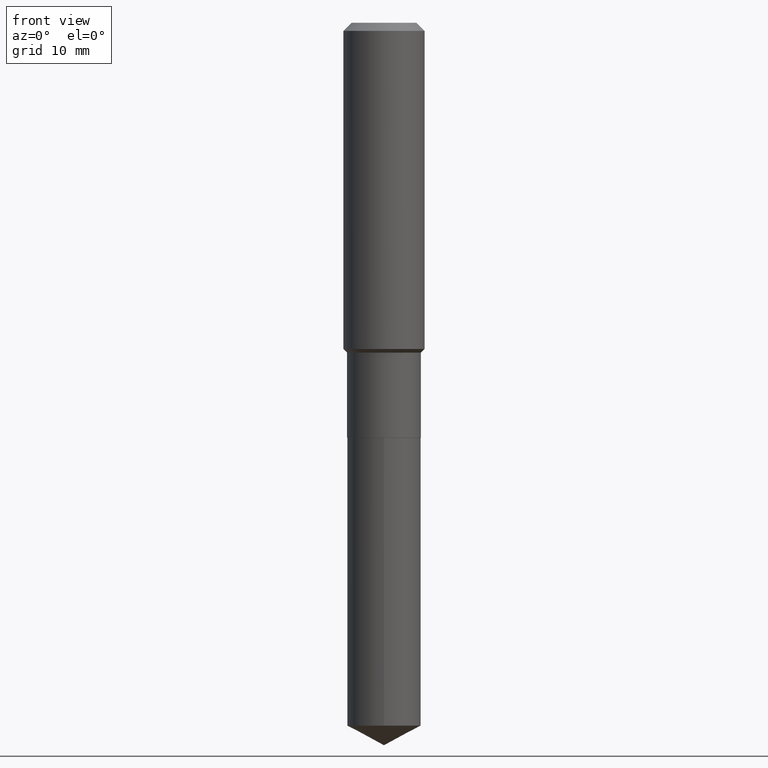
[diagram: clean part render]
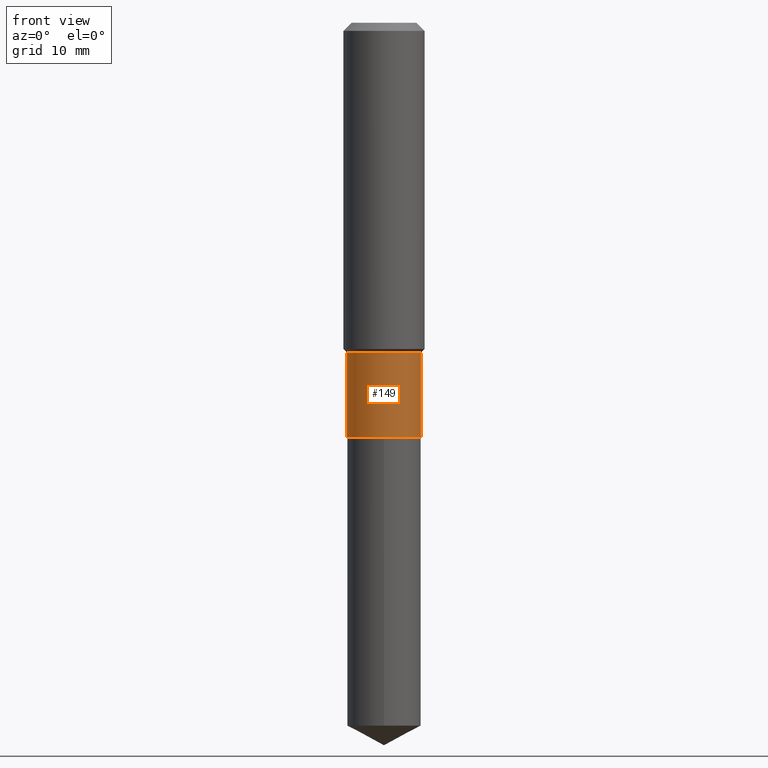
[diagram: same view with one face highlighted and labeled with its STEP entity id]
A machine part, front view. The second image highlights one B-rep face of the part: STEP entity #149.
In plain terms, the highlighted cylindrical surface (partial cylindrical patch) has radius 4.5504 mm, axis along (-0, 0, 1).
Its self-contained STEP definition (entity closure, byte-faithful):
#2 = CYLINDRICAL_SURFACE ( 'NONE', #41, 0.1791500000000000314 ) ;
#32 = VECTOR ( 'NONE', #246, 39.37007874015748143 ) ;
#40 = EDGE_CURVE ( 'NONE', #132, #418, #356, .T. ) ;
#41 = AXIS2_PLACEMENT_3D ( 'NONE', #313, #456, #131 ) ;
#66 = EDGE_LOOP ( 'NONE', ( #447, #342, #263, #201 ) ) ;
#68 = CARTESIAN_POINT ( 'NONE',  ( 0.1791500000000000314, -1.250997763707495014E-15, 8.735670693838419573E-30 ) ) ;
#71 = VECTOR ( 'NONE', #380, 39.37007874015748143 ) ;
#74 = FACE_OUTER_BOUND ( 'NONE', #66, .T. ) ;
#131 = DIRECTION ( 'NONE',  ( 1.000000000000000000, -6.982962677686267499E-15, 4.876176775795935232E-29 ) ) ;
#132 = VERTEX_POINT ( 'NONE', #419 ) ;
#136 = CARTESIAN_POINT ( 'NONE',  ( 0.1791499999999999759, -6.836669609588758911E-15, -1.599799999999999889 ) ) ;
#138 = CARTESIAN_POINT ( 'NONE',  ( -0.1791499999999999759, -5.031106820234021505E-15, -1.599799999999999889 ) ) ;
#149 = ADVANCED_FACE ( 'NONE', ( #74 ), #2, .T. ) ;
#152 = LINE ( 'NONE', #68, #71 ) ;
#201 = ORIENTED_EDGE ( 'NONE', *, *, #395, .F. ) ;
#242 = EDGE_CURVE ( 'NONE', #132, #282, #244, .T. ) ;
#244 = LINE ( 'NONE', #426, #32 ) ;
#246 = DIRECTION ( 'NONE',  ( -2.445468806185136877E-29, 3.491481338843145188E-15, 1.000000000000000000 ) ) ;
#249 = DIRECTION ( 'NONE',  ( -2.445468806185136597E-29, 3.491481338843145583E-15, 1.000000000000000000 ) ) ;
#258 = CIRCLE ( 'NONE', #284, 0.1791499999999999759 ) ;
#263 = ORIENTED_EDGE ( 'NONE', *, *, #339, .T. ) ;
#280 = CARTESIAN_POINT ( 'NONE',  ( 4.918571409880165014E-29, -7.022416416815218724E-15, -2.011299999999999866 ) ) ;
#282 = VERTEX_POINT ( 'NONE', #138 ) ;
#284 = AXIS2_PLACEMENT_3D ( 'NONE', #314, #292, #457 ) ;
#292 = DIRECTION ( 'NONE',  ( -2.445468806185136597E-29, 3.491481338843145583E-15, 1.000000000000000000 ) ) ;
#313 = CARTESIAN_POINT ( 'NONE',  ( 0.000000000000000000, 0.000000000000000000, 0.000000000000000000 ) ) ;
#314 = CARTESIAN_POINT ( 'NONE',  ( 3.912260996134981658E-29, -5.585671845881263700E-15, -1.599799999999999889 ) ) ;
#339 = EDGE_CURVE ( 'NONE', #418, #489, #152, .T. ) ;
#342 = ORIENTED_EDGE ( 'NONE', *, *, #40, .T. ) ;
#356 = CIRCLE ( 'NONE', #445, 0.1791500000000000592 ) ;
#380 = DIRECTION ( 'NONE',  ( -2.445468806185136877E-29, 3.491481338843145188E-15, 1.000000000000000000 ) ) ;
#395 = EDGE_CURVE ( 'NONE', #282, #489, #258, .T. ) ;
#418 = VERTEX_POINT ( 'NONE', #473 ) ;
#419 = CARTESIAN_POINT ( 'NONE',  ( -0.1791500000000000592, -5.031106820234021505E-15, -2.011299999999999866 ) ) ;
#426 = CARTESIAN_POINT ( 'NONE',  ( -0.1791500000000000314, 1.272937311114219706E-15, -8.812272214191663486E-30 ) ) ;
#430 = DIRECTION ( 'NONE',  ( 1.000000000000000000, -6.982962677686265922E-15, 0.000000000000000000 ) ) ;
#445 = AXIS2_PLACEMENT_3D ( 'NONE', #280, #249, #430 ) ;
#447 = ORIENTED_EDGE ( 'NONE', *, *, #242, .F. ) ;
#456 = DIRECTION ( 'NONE',  ( -2.445468806185136597E-29, 3.491481338843145583E-15, 1.000000000000000000 ) ) ;
#457 = DIRECTION ( 'NONE',  ( 1.000000000000000000, -6.982962677686269866E-15, 0.000000000000000000 ) ) ;
#473 = CARTESIAN_POINT ( 'NONE',  ( 0.1791500000000000592, -8.273414180522713146E-15, -2.011299999999999866 ) ) ;
#489 = VERTEX_POINT ( 'NONE', #136 ) ;